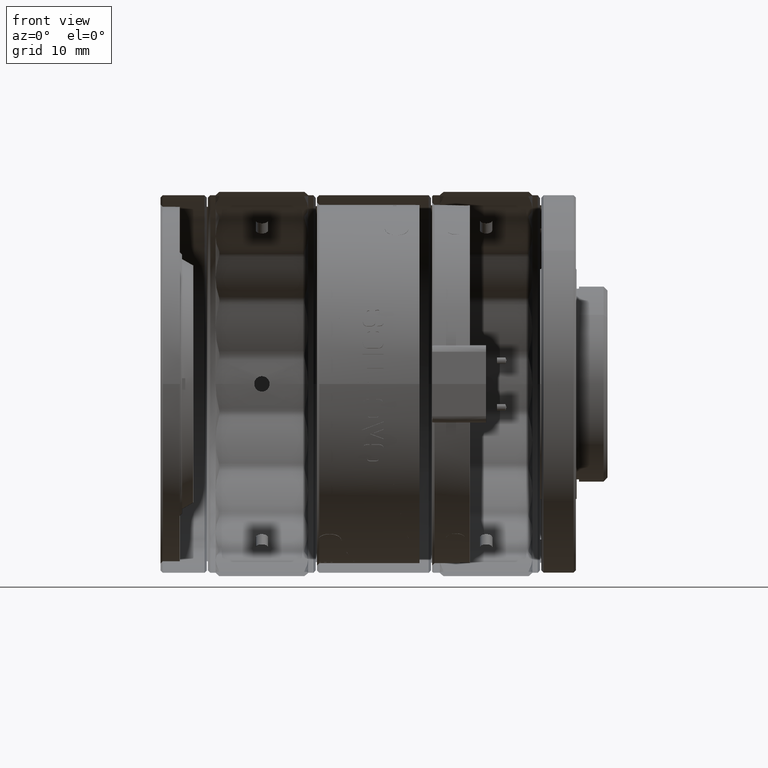
[diagram: clean part render]
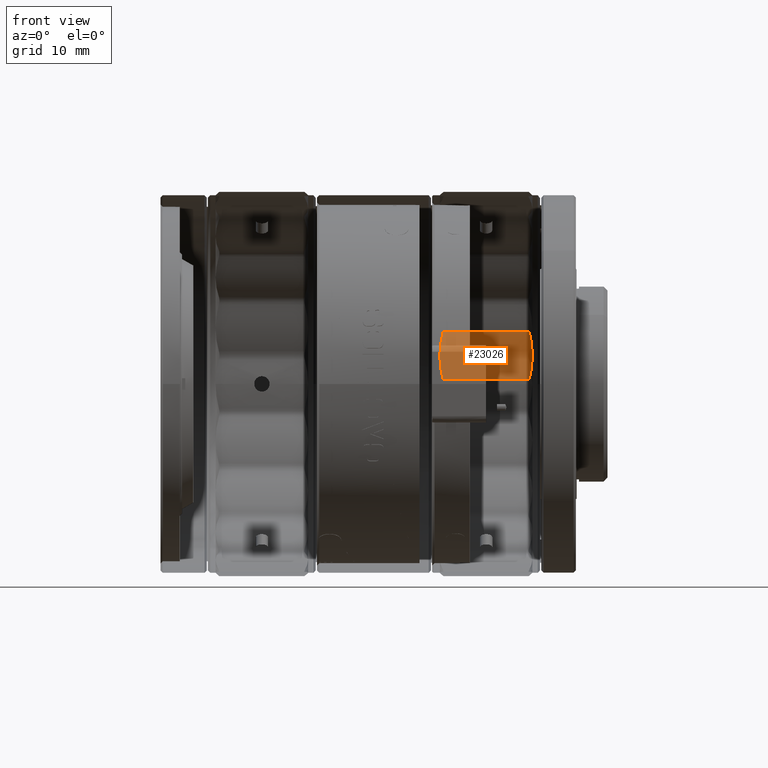
[diagram: same view with one face highlighted and labeled with its STEP entity id]
A machine part, front view. The second image highlights one B-rep face of the part: STEP entity #23026.
In plain terms, the highlighted face is a freeform B-spline surface patch.
Its self-contained STEP definition (entity closure, byte-faithful):
#331 = CARTESIAN_POINT ( 'NONE',  ( 41.98211237145485342, -24.53484794320337059, 2.021388701022508894 ) ) ;
#1000 = EDGE_CURVE ( 'NONE', #50229, #12367, #46828, .T. ) ;
#2001 = CARTESIAN_POINT ( 'NONE',  ( 30.10000000050752433, -24.14549736086228648, 4.186934113575055960 ) ) ;
#2205 = CARTESIAN_POINT ( 'NONE',  ( 42.17200000000001125, -24.30963978067578068, 2.598534574034199185 ) ) ;
#2498 = CARTESIAN_POINT ( 'NONE',  ( 42.17200000000000415, -23.97388750352932973, 6.817924702424353889 ) ) ;
#2806 = CARTESIAN_POINT ( 'NONE',  ( 42.17200000000000415, -24.91808581537283729, 0.5660198109065182059 ) ) ;
#3142 = ORIENTED_EDGE ( 'NONE', *, *, #49876, .F. ) ;
#3299 = ORIENTED_EDGE ( 'NONE', *, *, #10151, .F. ) ;
#3465 = CARTESIAN_POINT ( 'NONE',  ( 30.38520445372722989, -24.76729897612850451, 1.069723450894204175 ) ) ;
#4060 = ORIENTED_EDGE ( 'NONE', *, *, #1000, .F. ) ;
#4171 = CARTESIAN_POINT ( 'NONE',  ( 41.74514096334632285, -24.84269239580269684, 0.8178716328280424275 ) ) ;
#4598 = CARTESIAN_POINT ( 'NONE',  ( 30.10000000001506137, -24.26517626015252915, 3.394493499300758721 ) ) ;
#6125 = CARTESIAN_POINT ( 'NONE',  ( 42.06372688332753285, -24.10469451177407763, 4.583672305889564313 ) ) ;
#6240 = CARTESIAN_POINT ( 'NONE',  ( 41.67548637891594865, -24.91808581569475223, 0.5660198136826388726 ) ) ;
#7879 = CARTESIAN_POINT ( 'NONE',  ( 30.17538006986560717, -24.46309457695491574, 2.347487839336015014 ) ) ;
#10115 = B_SPLINE_CURVE_WITH_KNOTS ( 'NONE', 1,
 ( #42090, #6240 ),
 .UNSPECIFIED., .F., .F.,
 ( 2, 2 ),
 ( -1.000000000000000000, 0.0000000000000000000 ),
 .UNSPECIFIED. ) ;
#10151 = EDGE_CURVE ( 'NONE', #12192, #35732, #13407, .T. ) ;
#11120 = CARTESIAN_POINT ( 'NONE',  ( 42.00007486016647817, -24.04795525395389788, 5.182314434885076260 ) ) ;
#12192 = VERTEX_POINT ( 'NONE', #43341 ) ;
#12367 = VERTEX_POINT ( 'NONE', #40945 ) ;
#12706 = CARTESIAN_POINT ( 'NONE',  ( 42.09999999925279468, -24.22528329313049866, 3.658640370002904874 ) ) ;
#13407 = B_SPLINE_CURVE_WITH_KNOTS ( 'NONE', 3,
 ( #57469, #4598, #48972, #22518, #30198, #7879, #40452, #25784, #43710, #3465, #21382 ),
 .UNSPECIFIED., .F., .F.,
 ( 4, 2, 1, 2, 2, 4 ),
 ( -1.000000000000000000, -0.7500000000000017764, -0.6250000000000022204, -0.5625000000000019984, -0.5000000000000016653, 0.0000000000000000000 ),
 .UNSPECIFIED. ) ;
#13558 = CARTESIAN_POINT ( 'NONE',  ( 42.09999999949700111, -24.30506922548604720, 3.130346629198542008 ) ) ;
#15512 = CARTESIAN_POINT ( 'NONE',  ( 42.04672385989438510, -24.08367424701548742, 4.782338667700225088 ) ) ;
#15738 = CARTESIAN_POINT ( 'NONE',  ( 30.02800000000000225, -24.30963978067578068, 2.598534574034199185 ) ) ;
#15833 = CARTESIAN_POINT ( 'NONE',  ( 30.21788762964412456, -24.03753529723434568, 5.314289487389606492 ) ) ;
#16688 = CARTESIAN_POINT ( 'NONE',  ( 41.67548637719075089, -23.97388750367979782, 6.817924703428519528 ) ) ;
#17690 = CARTESIAN_POINT ( 'NONE',  ( 42.06372688317634356, -24.40299665290293873, 2.608268955232171393 ) ) ;
#19098 = CARTESIAN_POINT ( 'NONE',  ( 30.52451362230170062, -23.97388750459870010, 6.817924697397550027 ) ) ;
#19661 = CARTESIAN_POINT ( 'NONE',  ( 30.13627311716494361, -24.08487951076610045, 4.714646492610573780 ) ) ;
#20245 = CARTESIAN_POINT ( 'NONE',  ( 30.10000000074774817, -24.22528329242734912, 3.658640374662600170 ) ) ;
#21382 = CARTESIAN_POINT ( 'NONE',  ( 30.52451362139614943, -24.91808581650974830, 0.5660198076454979743 ) ) ;
#21863 = CARTESIAN_POINT ( 'NONE',  ( 42.09999999925279468, -24.22528329313049866, 3.658640370002904874 ) ) ;
#22518 = CARTESIAN_POINT ( 'NONE',  ( 30.13627311633411310, -24.38324917625346444, 2.739253348143602995 ) ) ;
#23026 = ADVANCED_FACE ( 'NONE', ( #46307 ), #39082, .F. ) ;
#23751 = CARTESIAN_POINT ( 'NONE',  ( 41.92002696878257240, -24.00151983241185505, 5.770447046764807020 ) ) ;
#24037 = CARTESIAN_POINT ( 'NONE',  ( 42.02461992943124613, -24.06528431340124996, 4.981544578424738745 ) ) ;
#24563 = ORIENTED_EDGE ( 'NONE', *, *, #50668, .F. ) ;
#25784 = CARTESIAN_POINT ( 'NONE',  ( 30.19992513886077390, -24.50582887103969298, 2.150554833907734054 ) ) ;
#27697 = VERTEX_POINT ( 'NONE', #21863 ) ;
#29264 = CARTESIAN_POINT ( 'NONE',  ( 42.17200000000001125, -23.99281166225769368, 4.696376985382155311 ) ) ;
#30198 = CARTESIAN_POINT ( 'NONE',  ( 30.15327613960866771, -24.42183569915923158, 2.543239946670337481 ) ) ;
#31079 = ORIENTED_EDGE ( 'NONE', *, *, #37207, .F. ) ;
#31501 = CARTESIAN_POINT ( 'NONE',  ( 41.95294148661766087, -24.57901933190364829, 1.831253965429446184 ) ) ;
#33440 = CARTESIAN_POINT ( 'NONE',  ( 42.09999999998493792, -24.18539032750881290, 3.922787243671038038 ) ) ;
#34848 = CARTESIAN_POINT ( 'NONE',  ( 30.52451362139614943, -24.91808581650974830, 0.5660198076454979743 ) ) ;
#35728 = CARTESIAN_POINT ( 'NONE',  ( 41.67548637719075089, -23.97388750367979782, 6.817924703428519528 ) ) ;
#35732 = VERTEX_POINT ( 'NONE', #34848 ) ;
#37207 = EDGE_CURVE ( 'NONE', #12367, #12192, #46702, .T. ) ;
#37825 = EDGE_LOOP ( 'NONE', ( #31079, #4060, #24563, #48456, #3142, #3299 ) ) ;
#37860 = CARTESIAN_POINT ( 'NONE',  ( 42.09999999925279468, -24.22528329313049866, 3.658640370002904874 ) ) ;
#37887 = CARTESIAN_POINT ( 'NONE',  ( 30.31480032274183500, -24.00035296421404496, 5.900919294004957294 ) ) ;
#39082 =( BOUNDED_SURFACE ( )  B_SPLINE_SURFACE ( 1, 3, ( 
 ( #2498, #29264, #2205, #2806 ),
 ( #56255, #55964, #15738, #42181 ) ),
 .UNSPECIFIED., .F., .F., .F. ) 
 B_SPLINE_SURFACE_WITH_KNOTS ( ( 2, 2 ),
 ( 4, 4 ),
 ( 0.0000000000000000000, 1.000000000000000000 ),
 ( 0.0000000000000000000, 1.000000000000000000 ),
 .UNSPECIFIED. ) 
 GEOMETRIC_REPRESENTATION_ITEM ( )  RATIONAL_B_SPLINE_SURFACE ( (
 ( 1.000000000000000000, 0.9933864840846519106, 0.9933864840846519106, 1.000000000000000000),
 ( 1.000000000000000000, 0.9933864840846519106, 0.9933864840846519106, 1.000000000000000000) ) ) 
 REPRESENTATION_ITEM ( '' )  SURFACE ( )  );
#40452 = CARTESIAN_POINT ( 'NONE',  ( 30.19124955825519052, -24.49119757900097483, 2.217021840442535918 ) ) ;
#40945 = CARTESIAN_POINT ( 'NONE',  ( 30.52451362230170062, -23.97388750459870010, 6.817924697397550027 ) ) ;
#41418 = CARTESIAN_POINT ( 'NONE',  ( 30.45485903814454787, -23.97623242570160329, 6.555040670732149799 ) ) ;
#42090 = CARTESIAN_POINT ( 'NONE',  ( 30.52451362139614943, -24.91808581650974830, 0.5660198076454979743 ) ) ;
#42181 = CARTESIAN_POINT ( 'NONE',  ( 30.02799999999999869, -24.91808581537283729, 0.5660198109065182059 ) ) ;
#43341 = CARTESIAN_POINT ( 'NONE',  ( 30.10000000074774817, -24.22528329242734912, 3.658640374662600170 ) ) ;
#43710 = CARTESIAN_POINT ( 'NONE',  ( 30.27997302986402417, -24.63514922597860135, 1.574939977286488491 ) ) ;
#44427 = CARTESIAN_POINT ( 'NONE',  ( 41.67548637891594865, -24.91808581569475223, 0.5660198136826388726 ) ) ;
#46265 = B_SPLINE_CURVE_WITH_KNOTS ( 'NONE', 3,
 ( #44427, #4171, #52931, #53506, #53220, #31501, #57907, #331, #17690, #13558, #12706 ),
 .UNSPECIFIED., .F., .F.,
 ( 4, 2, 1, 2, 2, 4 ),
 ( -1.000000000000000000, -0.7500000000000039968, -0.6250000000000053291, -0.5625000000000055511, -0.5000000000000056621, 0.0000000000000000000 ),
 .UNSPECIFIED. ) ;
#46307 = FACE_OUTER_BOUND ( 'NONE', #37825, .T. ) ;
#46702 = B_SPLINE_CURVE_WITH_KNOTS ( 'NONE', 3,
 ( #19098, #41418, #52947, #37887, #51662, #54895, #51083, #15833, #19661, #2001, #20245 ),
 .UNSPECIFIED., .F., .F.,
 ( 4, 2, 1, 2, 2, 4 ),
 ( -1.000000000000000000, -0.7500000000000002220, -0.6249999999999995559, -0.5624999999999992228, -0.4999999999999987788, 0.0000000000000000000 ),
 .UNSPECIFIED. ) ;
#46828 = B_SPLINE_CURVE_WITH_KNOTS ( 'NONE', 1,
 ( #35728, #54192 ),
 .UNSPECIFIED., .F., .F.,
 ( 2, 2 ),
 ( -1.000000000000000000, 0.0000000000000000000 ),
 .UNSPECIFIED. ) ;
#47839 = CARTESIAN_POINT ( 'NONE',  ( 41.81479554475019711, -23.97857734225408777, 6.292156667998630937 ) ) ;
#47971 = B_SPLINE_CURVE_WITH_KNOTS ( 'NONE', 3,
 ( #37860, #33440, #55734, #6125, #15512, #24037, #51348, #11120, #23751, #47839, #16688 ),
 .UNSPECIFIED., .F., .F.,
 ( 4, 2, 1, 2, 2, 4 ),
 ( -1.000000000000000000, -0.7500000000000005551, -0.6250000000000006661, -0.5625000000000000000, -0.4999999999999992228, 0.0000000000000000000 ),
 .UNSPECIFIED. ) ;
#48456 = ORIENTED_EDGE ( 'NONE', *, *, #53836, .F. ) ;
#48972 = CARTESIAN_POINT ( 'NONE',  ( 30.10906827909482075, -24.30959128252735724, 3.131900848364719714 ) ) ;
#49876 = EDGE_CURVE ( 'NONE', #35732, #56714, #10115, .T. ) ;
#50229 = VERTEX_POINT ( 'NONE', #55298 ) ;
#50277 = CARTESIAN_POINT ( 'NONE',  ( 41.67548637891594865, -24.91808581569475223, 0.5660198136826388726 ) ) ;
#50668 = EDGE_CURVE ( 'NONE', #27697, #50229, #47971, .T. ) ;
#51083 = CARTESIAN_POINT ( 'NONE',  ( 30.22714023535469252, -24.03276244456149513, 5.378341239245817640 ) ) ;
#51348 = CARTESIAN_POINT ( 'NONE',  ( 42.00875044089362831, -24.05360526697288748, 5.114491020367258223 ) ) ;
#51662 = CARTESIAN_POINT ( 'NONE',  ( 30.27853332727602620, -24.01068157494010080, 5.704938846864485491 ) ) ;
#52931 = CARTESIAN_POINT ( 'NONE',  ( 41.80627611082566375, -24.77194706881571307, 1.070105841769877886 ) ) ;
#52947 = CARTESIAN_POINT ( 'NONE',  ( 30.39372389051236922, -23.98313105876118456, 6.293163970069945101 ) ) ;
#53220 = CARTESIAN_POINT ( 'NONE',  ( 41.92146667382615988, -24.62455676017768624, 1.640232076289095842 ) ) ;
#53506 = CARTESIAN_POINT ( 'NONE',  ( 41.88519967842866976, -24.67256489464798364, 1.449942205642148485 ) ) ;
#53836 = EDGE_CURVE ( 'NONE', #56714, #27697, #46265, .T. ) ;
#54192 = CARTESIAN_POINT ( 'NONE',  ( 30.52451362230170062, -23.97388750459870010, 6.817924697397550027 ) ) ;
#54895 = CARTESIAN_POINT ( 'NONE',  ( 30.24705851443933469, -24.02358687426011841, 5.508988667568059050 ) ) ;
#55298 = CARTESIAN_POINT ( 'NONE',  ( 41.67548637719075089, -23.97388750367979782, 6.817924703428519528 ) ) ;
#55734 = CARTESIAN_POINT ( 'NONE',  ( 42.09093172082059908, -24.15027671800391218, 4.186784649069569042 ) ) ;
#55964 = CARTESIAN_POINT ( 'NONE',  ( 30.02800000000000225, -23.99281166225769368, 4.696376985382155311 ) ) ;
#56255 = CARTESIAN_POINT ( 'NONE',  ( 30.02799999999999869, -23.97388750352932973, 6.817924702424353889 ) ) ;
#56714 = VERTEX_POINT ( 'NONE', #50277 ) ;
#57469 = CARTESIAN_POINT ( 'NONE',  ( 30.10000000074774817, -24.22528329242734912, 3.658640374662600170 ) ) ;
#57907 = CARTESIAN_POINT ( 'NONE',  ( 41.97285976567734878, -24.54920344362390949, 1.958784175256510940 ) ) ;